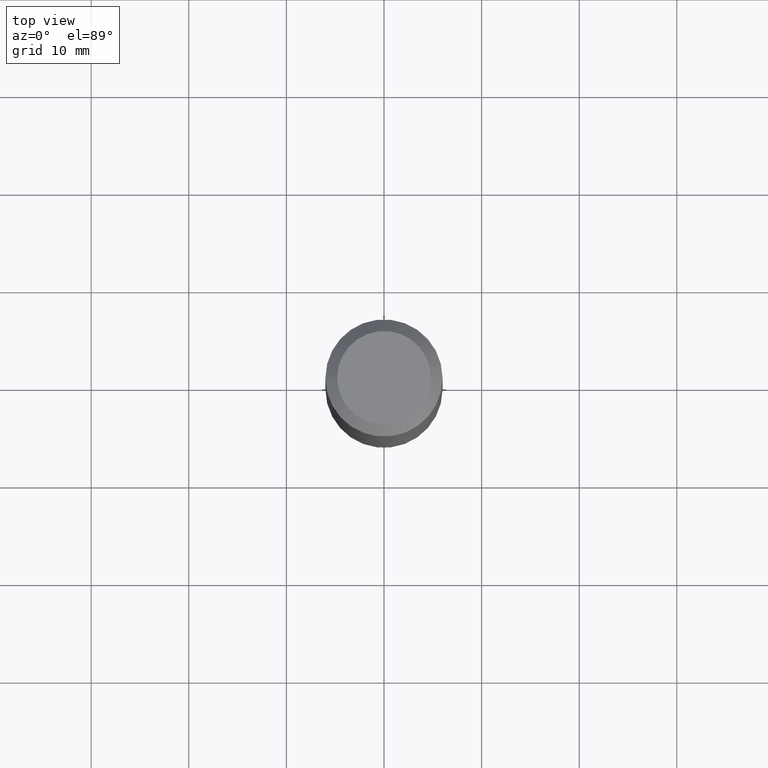
[diagram: clean part render]
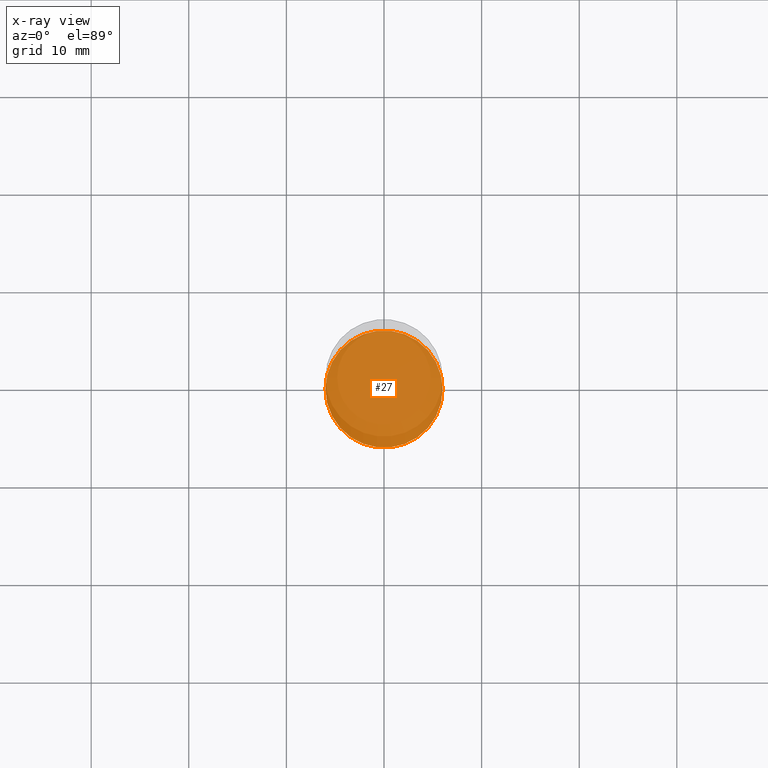
[diagram: x-ray — body ghosted, one internal face saturated and labeled with its STEP entity id]
A machine part, top view, then the same camera in x-ray: the body is ghosted and one INTERNAL B-rep face — a face not visible from any outside direction — is saturated and labeled: STEP entity #27.
In plain terms, the highlighted planar face has unit normal (-0, 0, -1).
Its self-contained STEP definition (entity closure, byte-faithful):
#2 = DIRECTION ( 'NONE',  ( -1.000000000000000000, 0.0000000000000000000, 6.982962677686266711E-15 ) ) ;
#5 = ORIENTED_EDGE ( 'NONE', *, *, #88, .T. ) ;
#27 = ADVANCED_FACE ( 'NONE', ( #47 ), #129, .T. ) ;
#42 = EDGE_LOOP ( 'NONE', ( #5 ) ) ;
#43 = DIRECTION ( 'NONE',  ( -6.982962677686266711E-15, -0.0000000000000000000, -1.000000000000000000 ) ) ;
#47 = FACE_OUTER_BOUND ( 'NONE', #42, .T. ) ;
#56 = CARTESIAN_POINT ( 'NONE',  ( -4.678584994049799958E-13, 0.0000000000000000000, -67.00000000000001421 ) ) ;
#68 = CARTESIAN_POINT ( 'NONE',  ( 5.999999999999531042, 0.0000000000000000000, -67.00000000000005684 ) ) ;
#88 = EDGE_CURVE ( 'NONE', #166, #166, #161, .T. ) ;
#90 = AXIS2_PLACEMENT_3D ( 'NONE', #153, #100, #2 ) ;
#100 = DIRECTION ( 'NONE',  ( -6.982962677686266711E-15, 0.0000000000000000000, -1.000000000000000000 ) ) ;
#113 = AXIS2_PLACEMENT_3D ( 'NONE', #56, #43, #124 ) ;
#124 = DIRECTION ( 'NONE',  ( 1.000000000000000000, 0.0000000000000000000, -6.938893903907230744E-15 ) ) ;
#129 = PLANE ( 'NONE',  #90 ) ;
#153 = CARTESIAN_POINT ( 'NONE',  ( -4.678584994049796929E-13, 0.0000000000000000000, -66.99999999999997158 ) ) ;
#161 = CIRCLE ( 'NONE', #113, 5.999999999999998224 ) ;
#166 = VERTEX_POINT ( 'NONE', #68 ) ;